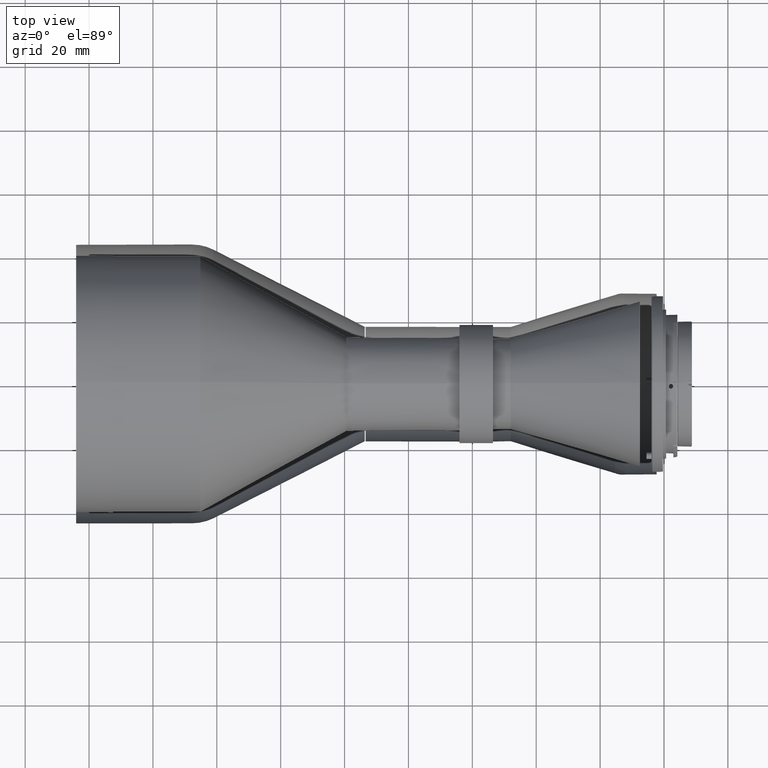
[diagram: clean part render]
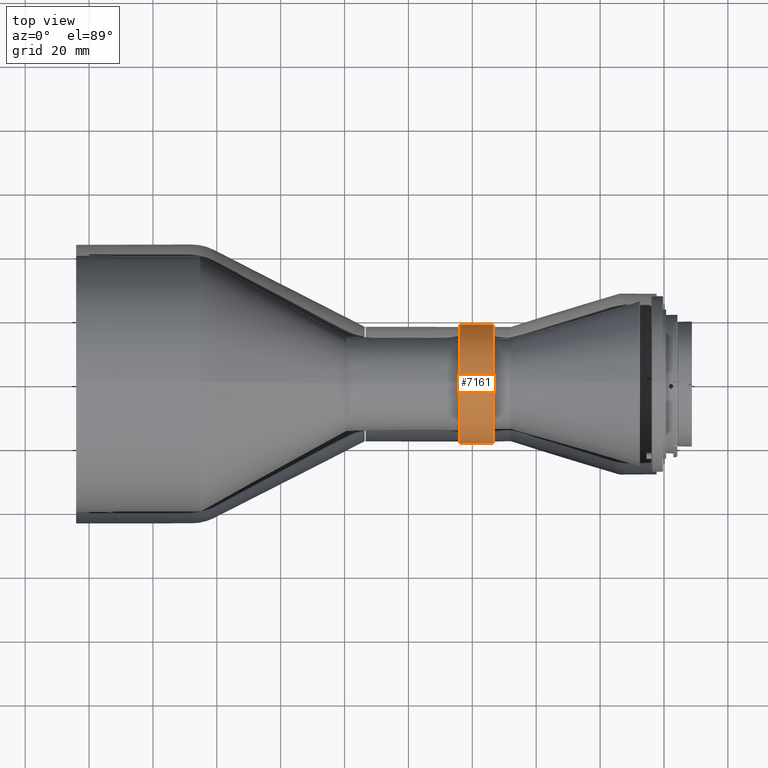
[diagram: same view with one face highlighted and labeled with its STEP entity id]
A machine part, top view. The second image highlights one B-rep face of the part: STEP entity #7161.
In plain terms, the highlighted cylindrical surface (partial cylindrical patch) has radius 18.5 mm, axis along (-1, 0, 0).
Its self-contained STEP definition (entity closure, byte-faithful):
#148 = CARTESIAN_POINT ( 'NONE',  ( 106.4747024800000048, -18.49999999999999645, -164.1114151909999634 ) ) ;
#341 = LINE ( 'NONE', #4668, #2834 ) ;
#482 = CIRCLE ( 'NONE', #1375, 18.49999999999998934 ) ;
#605 = EDGE_CURVE ( 'NONE', #4607, #4628, #341, .T. ) ;
#773 = ORIENTED_EDGE ( 'NONE', *, *, #803, .F. ) ;
#803 = EDGE_CURVE ( 'NONE', #4607, #8684, #1287, .T. ) ;
#1083 = DIRECTION ( 'NONE',  ( 0.000000000000000000, -1.441459667158090396E-10, 1.000000000000000000 ) ) ;
#1287 = CIRCLE ( 'NONE', #5198, 18.50000000000000000 ) ;
#1375 = AXIS2_PLACEMENT_3D ( 'NONE', #5374, #3920, #1083 ) ;
#1417 = ORIENTED_EDGE ( 'NONE', *, *, #605, .T. ) ;
#1455 = DIRECTION ( 'NONE',  ( 1.000000000000000000, 4.609851892553100381E-30, 2.400482215077530339E-15 ) ) ;
#1677 = CARTESIAN_POINT ( 'NONE',  ( 95.97470247999999060, 18.50000000000003553, -164.1114151909999919 ) ) ;
#2232 = CYLINDRICAL_SURFACE ( 'NONE', #7017, 18.50000000000000000 ) ;
#2834 = VECTOR ( 'NONE', #8249, 1000.000000000000000 ) ;
#3032 = DIRECTION ( 'NONE',  ( 0.000000000000000000, -1.000000000000000000, 0.000000000000000000 ) ) ;
#3065 = EDGE_LOOP ( 'NONE', ( #773, #1417, #8482, #4929 ) ) ;
#3387 = EDGE_CURVE ( 'NONE', #4856, #4628, #482, .T. ) ;
#3803 = FACE_OUTER_BOUND ( 'NONE', #3065, .T. ) ;
#3899 = LINE ( 'NONE', #6774, #5341 ) ;
#3920 = DIRECTION ( 'NONE',  ( -1.000000000000000000, -9.601928862315010163E-16, -1.384079318194826058E-25 ) ) ;
#4463 = CARTESIAN_POINT ( 'NONE',  ( 106.4747024800000048, 18.50000000000000355, -164.1114151909999919 ) ) ;
#4594 = CARTESIAN_POINT ( 'NONE',  ( 95.97470248000001902, -18.49999999999996447, -164.1114151909999919 ) ) ;
#4607 = VERTEX_POINT ( 'NONE', #4463 ) ;
#4628 = VERTEX_POINT ( 'NONE', #1677 ) ;
#4668 = CARTESIAN_POINT ( 'NONE',  ( 106.2247024800000048, 18.49999999999997158, -164.1114151909999919 ) ) ;
#4856 = VERTEX_POINT ( 'NONE', #4594 ) ;
#4929 = ORIENTED_EDGE ( 'NONE', *, *, #6697, .F. ) ;
#5198 = AXIS2_PLACEMENT_3D ( 'NONE', #7779, #1455, #7738 ) ;
#5341 = VECTOR ( 'NONE', #8278, 1000.000000000000000 ) ;
#5374 = CARTESIAN_POINT ( 'NONE',  ( 95.97470248000000481, 3.371675941590879078E-14, -164.1114151909999919 ) ) ;
#6697 = EDGE_CURVE ( 'NONE', #8684, #4856, #3899, .T. ) ;
#6774 = CARTESIAN_POINT ( 'NONE',  ( 106.2247024800000048, -18.50000000000002842, -164.1114151909999919 ) ) ;
#7017 = AXIS2_PLACEMENT_3D ( 'NONE', #7429, #7986, #3032 ) ;
#7161 = ADVANCED_FACE ( 'NONE', ( #3803 ), #2232, .T. ) ;
#7429 = CARTESIAN_POINT ( 'NONE',  ( 106.2247024800000048, -2.664535259100379799E-14, -164.1114151909999919 ) ) ;
#7738 = DIRECTION ( 'NONE',  ( 0.000000000000000000, -1.000000000000000000, 1.500301384628589978E-15 ) ) ;
#7779 = CARTESIAN_POINT ( 'NONE',  ( 106.4747024800000048, 2.220446049250309925E-15, -164.1114151909999919 ) ) ;
#7986 = DIRECTION ( 'NONE',  ( -1.000000000000000000, 0.000000000000000000, 0.000000000000000000 ) ) ;
#8249 = DIRECTION ( 'NONE',  ( -1.000000000000000000, 0.000000000000000000, 0.000000000000000000 ) ) ;
#8278 = DIRECTION ( 'NONE',  ( -1.000000000000000000, 0.000000000000000000, 0.000000000000000000 ) ) ;
#8482 = ORIENTED_EDGE ( 'NONE', *, *, #3387, .F. ) ;
#8684 = VERTEX_POINT ( 'NONE', #148 ) ;